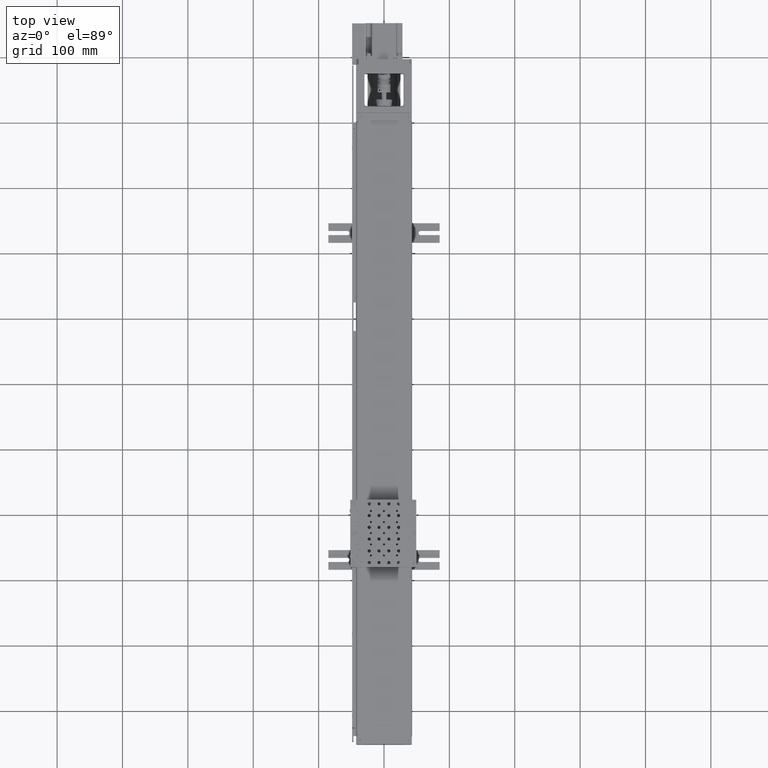
[diagram: clean part render]
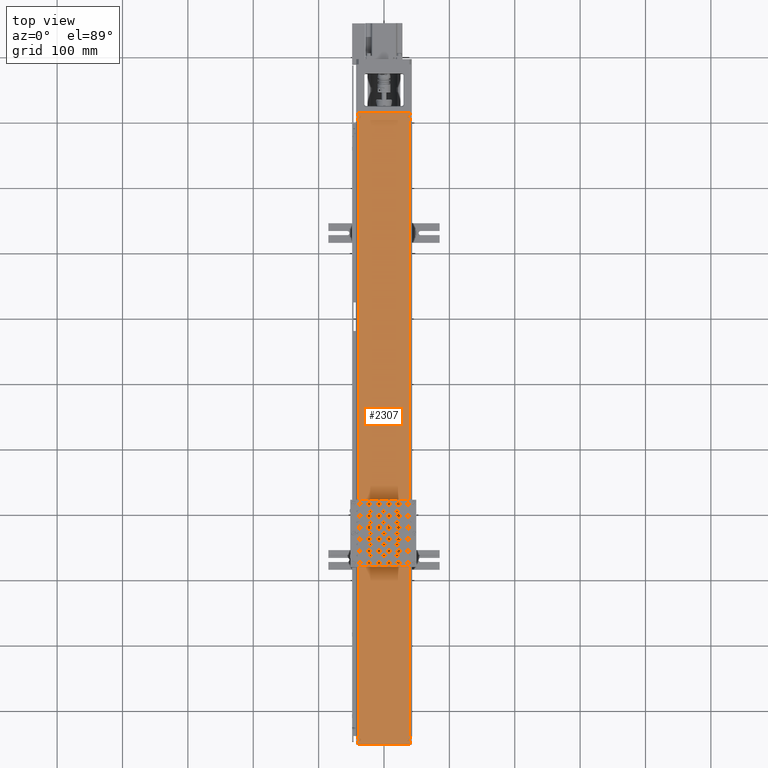
[diagram: same view with one face highlighted and labeled with its STEP entity id]
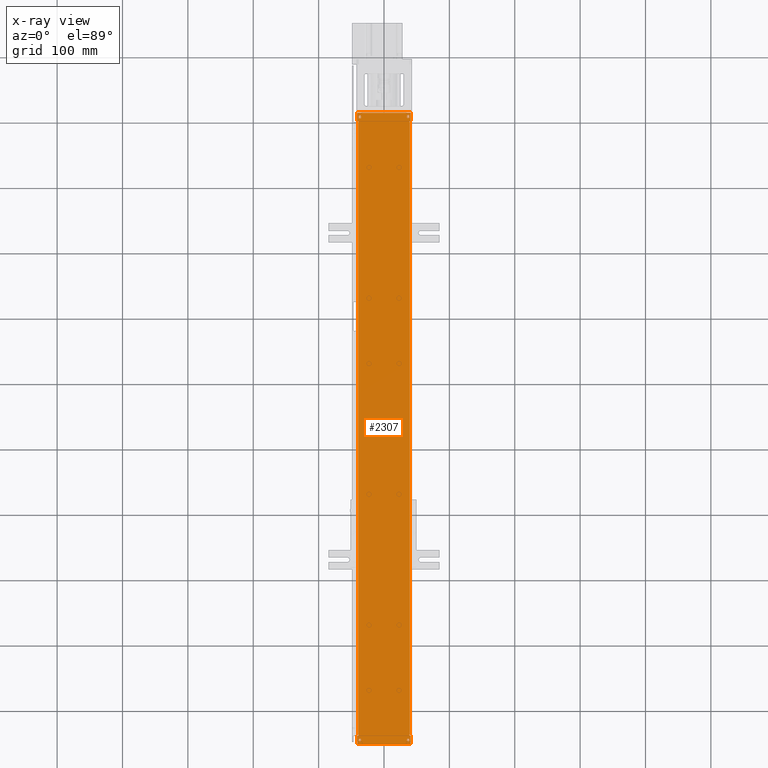
[diagram: x-ray of the same camera — body ghosted, the highlighted face saturated]
A machine part, top view. The second image highlights one B-rep face of the part: STEP entity #2307.
The next image is the same camera in x-ray: the body ghosted, the highlighted face saturated — about 0% of this face is hidden behind the body in this view.
In plain terms, the highlighted planar face has unit normal (0, 0, 1).
Its self-contained STEP definition (entity closure, byte-faithful):
#337=FACE_BOUND('',#7764,.T.);
#338=FACE_BOUND('',#7765,.T.);
#339=FACE_BOUND('',#7766,.T.);
#340=FACE_BOUND('',#7767,.T.);
#2307=ADVANCED_FACE('',(#4874,#337,#338,#339,#340),#40971,.T.);
#4874=FACE_OUTER_BOUND('',#7763,.T.);
#7763=EDGE_LOOP('',(#18849,#18850,#18851,#18852,#18853,#18854,#18855,#18856,
#18857,#18858,#18859,#18860,#18861,#18862,#18863,#18864,#18865,#18866,#18867,
#18868));
#7764=EDGE_LOOP('',(#18869,#18870,#18871,#18872,#18873,#18874,#18875,#18876));
#7765=EDGE_LOOP('',(#18877,#18878));
#7766=EDGE_LOOP('',(#18879,#18880,#18881,#18882,#18883,#18884,#18885,#18886));
#7767=EDGE_LOOP('',(#18887,#18888));
#18849=ORIENTED_EDGE('',*,*,#26840,.T.);
#18850=ORIENTED_EDGE('',*,*,#26841,.T.);
#18851=ORIENTED_EDGE('',*,*,#26842,.T.);
#18852=ORIENTED_EDGE('',*,*,#26843,.T.);
#18853=ORIENTED_EDGE('',*,*,#26844,.T.);
#18854=ORIENTED_EDGE('',*,*,#26845,.T.);
#18855=ORIENTED_EDGE('',*,*,#26846,.T.);
#18856=ORIENTED_EDGE('',*,*,#26798,.F.);
#18857=ORIENTED_EDGE('',*,*,#26799,.F.);
#18858=ORIENTED_EDGE('',*,*,#26802,.F.);
#18859=ORIENTED_EDGE('',*,*,#26815,.T.);
#18860=ORIENTED_EDGE('',*,*,#26818,.T.);
#18861=ORIENTED_EDGE('',*,*,#26820,.T.);
#18862=ORIENTED_EDGE('',*,*,#26847,.T.);
#18863=ORIENTED_EDGE('',*,*,#26813,.T.);
#18864=ORIENTED_EDGE('',*,*,#26807,.T.);
#18865=ORIENTED_EDGE('',*,*,#26810,.T.);
#18866=ORIENTED_EDGE('',*,*,#26805,.F.);
#18867=ORIENTED_EDGE('',*,*,#26793,.F.);
#18868=ORIENTED_EDGE('',*,*,#26839,.F.);
#18869=ORIENTED_EDGE('',*,*,#26911,.T.);
#18870=ORIENTED_EDGE('',*,*,#26848,.T.);
#18871=ORIENTED_EDGE('',*,*,#26915,.T.);
#18872=ORIENTED_EDGE('',*,*,#26849,.T.);
#18873=ORIENTED_EDGE('',*,*,#26918,.T.);
#18874=ORIENTED_EDGE('',*,*,#26850,.T.);
#18875=ORIENTED_EDGE('',*,*,#26907,.T.);
#18876=ORIENTED_EDGE('',*,*,#26851,.T.);
#18877=ORIENTED_EDGE('',*,*,#27379,.T.);
#18878=ORIENTED_EDGE('',*,*,#28574,.T.);
#18879=ORIENTED_EDGE('',*,*,#26852,.T.);
#18880=ORIENTED_EDGE('',*,*,#26896,.T.);
#18881=ORIENTED_EDGE('',*,*,#26853,.T.);
#18882=ORIENTED_EDGE('',*,*,#26900,.T.);
#18883=ORIENTED_EDGE('',*,*,#26854,.T.);
#18884=ORIENTED_EDGE('',*,*,#26888,.T.);
#18885=ORIENTED_EDGE('',*,*,#26855,.T.);
#18886=ORIENTED_EDGE('',*,*,#26892,.T.);
#18887=ORIENTED_EDGE('',*,*,#27378,.T.);
#18888=ORIENTED_EDGE('',*,*,#28571,.T.);
#26793=EDGE_CURVE('',#38718,#38719,#31874,.T.);
#26798=EDGE_CURVE('',#38721,#38720,#31879,.T.);
#26799=EDGE_CURVE('',#38722,#38721,#31880,.T.);
#26802=EDGE_CURVE('',#38723,#38722,#31883,.T.);
#26805=EDGE_CURVE('',#38719,#38724,#31886,.T.);
#26807=EDGE_CURVE('',#38726,#38725,#31888,.T.);
#26810=EDGE_CURVE('',#38725,#38724,#31891,.T.);
#26813=EDGE_CURVE('',#38728,#38726,#31894,.T.);
#26815=EDGE_CURVE('',#38723,#38730,#31896,.T.);
#26818=EDGE_CURVE('',#38730,#38732,#31899,.T.);
#26820=EDGE_CURVE('',#38732,#38734,#31901,.T.);
#26839=EDGE_CURVE('',#38743,#38718,#31914,.T.);
#26840=EDGE_CURVE('',#38743,#38744,#31915,.T.);
#26841=EDGE_CURVE('',#38744,#38745,#31916,.T.);
#26842=EDGE_CURVE('',#38745,#38746,#31917,.T.);
#26843=EDGE_CURVE('',#38746,#38747,#31918,.T.);
#26844=EDGE_CURVE('',#38747,#38748,#31919,.T.);
#26845=EDGE_CURVE('',#38748,#38749,#31920,.T.);
#26846=EDGE_CURVE('',#38749,#38720,#31921,.T.);
#26847=EDGE_CURVE('',#38734,#38728,#31922,.T.);
#26848=EDGE_CURVE('',#38751,#38752,#31923,.T.);
#26849=EDGE_CURVE('',#38753,#38754,#31924,.T.);
#26850=EDGE_CURVE('',#38755,#38756,#31925,.T.);
#26851=EDGE_CURVE('',#38757,#38750,#31926,.T.);
#26852=EDGE_CURVE('',#38759,#38760,#31927,.T.);
#26853=EDGE_CURVE('',#38761,#38762,#31928,.T.);
#26854=EDGE_CURVE('',#38763,#38764,#31929,.T.);
#26855=EDGE_CURVE('',#38765,#38766,#31930,.T.);
#26888=EDGE_CURVE('',#38764,#38765,#33990,.T.);
#26892=EDGE_CURVE('',#38766,#38759,#33993,.T.);
#26896=EDGE_CURVE('',#38760,#38761,#33996,.T.);
#26900=EDGE_CURVE('',#38762,#38763,#33999,.T.);
#26907=EDGE_CURVE('',#38756,#38757,#34004,.T.);
#26911=EDGE_CURVE('',#38750,#38751,#34007,.T.);
#26915=EDGE_CURVE('',#38752,#38753,#34010,.T.);
#26918=EDGE_CURVE('',#38754,#38755,#34012,.T.);
#27378=EDGE_CURVE('',#38767,#39661,#34329,.T.);
#27379=EDGE_CURVE('',#38758,#39663,#34330,.T.);
#28571=EDGE_CURVE('',#39661,#38767,#35320,.T.);
#28574=EDGE_CURVE('',#39663,#38758,#35323,.T.);
#31874=B_SPLINE_CURVE_WITH_KNOTS('',1,(#103357,#103358),.UNSPECIFIED.,.F.,
 .F.,(2,2),(-8.19999999993447,0.),.UNSPECIFIED.);
#31879=B_SPLINE_CURVE_WITH_KNOTS('',1,(#103367,#103368),.UNSPECIFIED.,.F.,
 .F.,(2,2),(-96.540000000005,-95.290000000005),.UNSPECIFIED.);
#31880=B_SPLINE_CURVE_WITH_KNOTS('',1,(#103369,#103370),.UNSPECIFIED.,.F.,
 .F.,(2,2),(-8.19999999993448,0.),.UNSPECIFIED.);
#31883=B_SPLINE_CURVE_WITH_KNOTS('',1,(#103375,#103376),.UNSPECIFIED.,.F.,
 .F.,(2,2),(-1.25,0.),.UNSPECIFIED.);
#31886=B_SPLINE_CURVE_WITH_KNOTS('',1,(#103381,#103382),.UNSPECIFIED.,.F.,
 .F.,(2,2),(-96.540000000005,-95.290000000005),.UNSPECIFIED.);
#31888=B_SPLINE_CURVE_WITH_KNOTS('',1,(#103385,#103386),.UNSPECIFIED.,.F.,
 .F.,(2,2),(23.3600000000013,23.5100000000013),.UNSPECIFIED.);
#31891=B_SPLINE_CURVE_WITH_KNOTS('',1,(#103391,#103392),.UNSPECIFIED.,.F.,
 .F.,(2,2),(1.82499999998362,2.04999999998362),.UNSPECIFIED.);
#31894=B_SPLINE_CURVE_WITH_KNOTS('',1,(#103397,#103398),.UNSPECIFIED.,.F.,
 .F.,(2,2),(-2.01249999998362,-1.93749999998362),.UNSPECIFIED.);
#31896=B_SPLINE_CURVE_WITH_KNOTS('',1,(#103401,#103402),.UNSPECIFIED.,.F.,
 .F.,(2,2),(-2.16249999998363,-1.93749999998363),.UNSPECIFIED.);
#31899=B_SPLINE_CURVE_WITH_KNOTS('',1,(#103407,#103408),.UNSPECIFIED.,.F.,
 .F.,(2,2),(-23.5850000000012,-23.4350000000012),.UNSPECIFIED.);
#31901=B_SPLINE_CURVE_WITH_KNOTS('',1,(#103411,#103412),.UNSPECIFIED.,.F.,
 .F.,(2,2),(1.82499999998363,1.89999999998363),.UNSPECIFIED.);
#31914=B_SPLINE_CURVE_WITH_KNOTS('',1,(#103453,#103454),.UNSPECIFIED.,.F.,
 .F.,(2,2),(-1.25,0.),.UNSPECIFIED.);
#31915=B_SPLINE_CURVE_WITH_KNOTS('',1,(#103455,#103456),.UNSPECIFIED.,.F.,
 .F.,(2,2),(-2.16249999998361,-1.93749999998361),.UNSPECIFIED.);
#31916=B_SPLINE_CURVE_WITH_KNOTS('',1,(#103457,#103458),.UNSPECIFIED.,.F.,
 .F.,(2,2),(-23.5850000000013,-23.4350000000013),.UNSPECIFIED.);
#31917=B_SPLINE_CURVE_WITH_KNOTS('',1,(#103459,#103460),.UNSPECIFIED.,.F.,
 .F.,(2,2),(1.82499999998363,1.89999999998363),.UNSPECIFIED.);
#31918=B_SPLINE_CURVE_WITH_KNOTS('',1,(#103461,#103462),.UNSPECIFIED.,.F.,
 .F.,(2,2),(-23.4350000000013,70.3050000000037),.UNSPECIFIED.);
#31919=B_SPLINE_CURVE_WITH_KNOTS('',1,(#103463,#103464),.UNSPECIFIED.,.F.,
 .F.,(2,2),(-2.01249999998361,-1.93749999998361),.UNSPECIFIED.);
#31920=B_SPLINE_CURVE_WITH_KNOTS('',1,(#103465,#103466),.UNSPECIFIED.,.F.,
 .F.,(2,2),(23.3600000000012,23.5100000000013),.UNSPECIFIED.);
#31921=B_SPLINE_CURVE_WITH_KNOTS('',1,(#103467,#103468),.UNSPECIFIED.,.F.,
 .F.,(2,2),(1.82499999998361,2.04999999998361),.UNSPECIFIED.);
#31922=B_SPLINE_CURVE_WITH_KNOTS('',1,(#103469,#103470),.UNSPECIFIED.,.F.,
 .F.,(2,2),(-23.4350000000012,70.3050000000038),.UNSPECIFIED.);
#31923=B_SPLINE_CURVE_WITH_KNOTS('',1,(#103471,#103472),.UNSPECIFIED.,.F.,
 .F.,(2,2),(1.84499999998386,1.86499999998386),.UNSPECIFIED.);
#31924=B_SPLINE_CURVE_WITH_KNOTS('',1,(#103473,#103474),.UNSPECIFIED.,.F.,
 .F.,(2,2),(-23.8834999999988,-23.7834999999987),.UNSPECIFIED.);
#31925=B_SPLINE_CURVE_WITH_KNOTS('',1,(#103475,#103476),.UNSPECIFIED.,.F.,
 .F.,(2,2),(-1.85499999998389,-1.8349999999839),.UNSPECIFIED.);
#31926=B_SPLINE_CURVE_WITH_KNOTS('',1,(#103477,#103478),.UNSPECIFIED.,.F.,
 .F.,(2,2),(23.8334999999988,23.9334999999988),.UNSPECIFIED.);
#31927=B_SPLINE_CURVE_WITH_KNOTS('',1,(#103479,#103480),.UNSPECIFIED.,.F.,
 .F.,(2,2),(-1.85500000001607,-1.83500000001607),.UNSPECIFIED.);
#31928=B_SPLINE_CURVE_WITH_KNOTS('',1,(#103481,#103482),.UNSPECIFIED.,.F.,
 .F.,(2,2),(-23.8499999999988,-23.7499999999988),.UNSPECIFIED.);
#31929=B_SPLINE_CURVE_WITH_KNOTS('',1,(#103483,#103484),.UNSPECIFIED.,.F.,
 .F.,(2,2),(1.8450000000162,1.8650000000162),.UNSPECIFIED.);
#31930=B_SPLINE_CURVE_WITH_KNOTS('',1,(#103485,#103486),.UNSPECIFIED.,.F.,
 .F.,(2,2),(23.7999999999988,23.8999999999988),.UNSPECIFIED.);
#33990=(
BOUNDED_CURVE()
B_SPLINE_CURVE(2,(#103559,#103560,#103561),.UNSPECIFIED.,.F.,.F.)
B_SPLINE_CURVE_WITH_KNOTS((3,3),(-1.57079632679489,6.38378239159465E-15),
 .UNSPECIFIED.)
CURVE()
GEOMETRIC_REPRESENTATION_ITEM()
RATIONAL_B_SPLINE_CURVE((1.,0.707106781186546,1.))
REPRESENTATION_ITEM('')
);
#33993=(
BOUNDED_CURVE()
B_SPLINE_CURVE(2,(#103569,#103570,#103571),.UNSPECIFIED.,.F.,.F.)
B_SPLINE_CURVE_WITH_KNOTS((3,3),(-1.57079632679489,9.36772324949938E-29),
 .UNSPECIFIED.)
CURVE()
GEOMETRIC_REPRESENTATION_ITEM()
RATIONAL_B_SPLINE_CURVE((1.,0.70710678118655,1.))
REPRESENTATION_ITEM('')
);
#33996=(
BOUNDED_CURVE()
B_SPLINE_CURVE(2,(#103579,#103580,#103581),.UNSPECIFIED.,.F.,.F.)
B_SPLINE_CURVE_WITH_KNOTS((3,3),(-1.57079632679489,6.93889390390723E-15),
 .UNSPECIFIED.)
CURVE()
GEOMETRIC_REPRESENTATION_ITEM()
RATIONAL_B_SPLINE_CURVE((1.,0.707106781186546,1.))
REPRESENTATION_ITEM('')
);
#33999=(
BOUNDED_CURVE()
B_SPLINE_CURVE(2,(#103589,#103590,#103591),.UNSPECIFIED.,.F.,.F.)
B_SPLINE_CURVE_WITH_KNOTS((3,3),(-1.57079632679489,9.36772324949938E-29),
 .UNSPECIFIED.)
CURVE()
GEOMETRIC_REPRESENTATION_ITEM()
RATIONAL_B_SPLINE_CURVE((1.,0.70710678118655,1.))
REPRESENTATION_ITEM('')
);
#34004=(
BOUNDED_CURVE()
B_SPLINE_CURVE(2,(#103608,#103609,#103610),.UNSPECIFIED.,.F.,.F.)
B_SPLINE_CURVE_WITH_KNOTS((3,3),(-1.5707963267949,5.55111512312579E-15),
 .UNSPECIFIED.)
CURVE()
GEOMETRIC_REPRESENTATION_ITEM()
RATIONAL_B_SPLINE_CURVE((1.,0.707106781186546,1.))
REPRESENTATION_ITEM('')
);
#34007=(
BOUNDED_CURVE()
B_SPLINE_CURVE(2,(#103618,#103619,#103620),.UNSPECIFIED.,.F.,.F.)
B_SPLINE_CURVE_WITH_KNOTS((3,3),(-1.57079632679489,9.76215370210988E-29),
 .UNSPECIFIED.)
CURVE()
GEOMETRIC_REPRESENTATION_ITEM()
RATIONAL_B_SPLINE_CURVE((1.,0.70710678118655,1.))
REPRESENTATION_ITEM('')
);
#34010=(
BOUNDED_CURVE()
B_SPLINE_CURVE(2,(#103628,#103629,#103630),.UNSPECIFIED.,.F.,.F.)
B_SPLINE_CURVE_WITH_KNOTS((3,3),(-1.5707963267949,5.68989300120393E-15),
 .UNSPECIFIED.)
CURVE()
GEOMETRIC_REPRESENTATION_ITEM()
RATIONAL_B_SPLINE_CURVE((1.,0.707106781186546,1.))
REPRESENTATION_ITEM('')
);
#34012=(
BOUNDED_CURVE()
B_SPLINE_CURVE(2,(#103636,#103637,#103638),.UNSPECIFIED.,.F.,.F.)
B_SPLINE_CURVE_WITH_KNOTS((3,3),(-1.57079632679489,6.90253292068376E-29),
 .UNSPECIFIED.)
CURVE()
GEOMETRIC_REPRESENTATION_ITEM()
RATIONAL_B_SPLINE_CURVE((1.,0.707106781186549,1.))
REPRESENTATION_ITEM('')
);
#34329=(
BOUNDED_CURVE()
B_SPLINE_CURVE(2,(#105256,#105257,#105258,#105259,#105260),
 .UNSPECIFIED.,.F.,.F.)
B_SPLINE_CURVE_WITH_KNOTS((3,2,3),(3.14159265358979,4.71238898038468,6.28318530717959),
 .UNSPECIFIED.)
CURVE()
GEOMETRIC_REPRESENTATION_ITEM()
RATIONAL_B_SPLINE_CURVE((1.,0.707106781186548,1.,0.707106781186548,1.))
REPRESENTATION_ITEM('')
);
#34330=(
BOUNDED_CURVE()
B_SPLINE_CURVE(2,(#105261,#105262,#105263,#105264,#105265),
 .UNSPECIFIED.,.F.,.F.)
B_SPLINE_CURVE_WITH_KNOTS((3,2,3),(3.14159265358979,4.71238898038469,6.28318530717959),
 .UNSPECIFIED.)
CURVE()
GEOMETRIC_REPRESENTATION_ITEM()
RATIONAL_B_SPLINE_CURVE((1.,0.707106781186548,1.,0.707106781186548,1.))
REPRESENTATION_ITEM('')
);
#35320=(
BOUNDED_CURVE()
B_SPLINE_CURVE(2,(#111840,#111841,#111842,#111843,#111844),
 .UNSPECIFIED.,.F.,.F.)
B_SPLINE_CURVE_WITH_KNOTS((3,2,3),(6.28318530717959,7.85398163397449,9.42477796076938),
 .UNSPECIFIED.)
CURVE()
GEOMETRIC_REPRESENTATION_ITEM()
RATIONAL_B_SPLINE_CURVE((1.,0.707106781186548,1.,0.707106781186548,1.))
REPRESENTATION_ITEM('')
);
#35323=(
BOUNDED_CURVE()
B_SPLINE_CURVE(2,(#111852,#111853,#111854,#111855,#111856),
 .UNSPECIFIED.,.F.,.F.)
B_SPLINE_CURVE_WITH_KNOTS((3,2,3),(6.28318530717959,7.85398163397449,9.42477796076938),
 .UNSPECIFIED.)
CURVE()
GEOMETRIC_REPRESENTATION_ITEM()
RATIONAL_B_SPLINE_CURVE((1.,0.707106781186548,1.,0.707106781186548,1.))
REPRESENTATION_ITEM('')
);
#38718=VERTEX_POINT('',#72213);
#38719=VERTEX_POINT('',#72214);
#38720=VERTEX_POINT('',#72215);
#38721=VERTEX_POINT('',#72216);
#38722=VERTEX_POINT('',#72217);
#38723=VERTEX_POINT('',#72218);
#38724=VERTEX_POINT('',#72219);
#38725=VERTEX_POINT('',#72220);
#38726=VERTEX_POINT('',#72221);
#38728=VERTEX_POINT('',#72223);
#38730=VERTEX_POINT('',#72225);
#38732=VERTEX_POINT('',#72227);
#38734=VERTEX_POINT('',#72229);
#38743=VERTEX_POINT('',#72238);
#38744=VERTEX_POINT('',#72239);
#38745=VERTEX_POINT('',#72240);
#38746=VERTEX_POINT('',#72241);
#38747=VERTEX_POINT('',#72242);
#38748=VERTEX_POINT('',#72243);
#38749=VERTEX_POINT('',#72244);
#38750=VERTEX_POINT('',#72245);
#38751=VERTEX_POINT('',#72246);
#38752=VERTEX_POINT('',#72247);
#38753=VERTEX_POINT('',#72248);
#38754=VERTEX_POINT('',#72249);
#38755=VERTEX_POINT('',#72250);
#38756=VERTEX_POINT('',#72251);
#38757=VERTEX_POINT('',#72252);
#38758=VERTEX_POINT('',#72253);
#38759=VERTEX_POINT('',#72254);
#38760=VERTEX_POINT('',#72255);
#38761=VERTEX_POINT('',#72256);
#38762=VERTEX_POINT('',#72257);
#38763=VERTEX_POINT('',#72258);
#38764=VERTEX_POINT('',#72259);
#38765=VERTEX_POINT('',#72260);
#38766=VERTEX_POINT('',#72261);
#38767=VERTEX_POINT('',#72262);
#39661=VERTEX_POINT('',#73156);
#39663=VERTEX_POINT('',#73158);
#40971=PLANE('',#43748);
#43748=AXIS2_PLACEMENT_3D('',#66571,#45669,$);
#45669=DIRECTION('',(0.,0.,1.));
#66571=CARTESIAN_POINT('',(-41.0099999993532,-551.215304171535,69.5000002768673));
#72213=CARTESIAN_POINT('',(-40.9999999993553,414.194695828515,69.5000002768673));
#72214=CARTESIAN_POINT('',(40.9999999999894,414.194695828515,69.5000002768673));
#72215=CARTESIAN_POINT('',(-40.9999999993508,-538.705304171534,69.5000002768673));
#72216=CARTESIAN_POINT('',(-40.9999999993508,-551.205304171535,69.5000002768673));
#72217=CARTESIAN_POINT('',(40.9999999999941,-551.205304171534,69.5000002768673));
#72218=CARTESIAN_POINT('',(40.999999999994,-538.705304171534,69.5000002768673));
#72219=CARTESIAN_POINT('',(40.9999999999894,401.694695828515,69.5000002768673));
#72220=CARTESIAN_POINT('',(38.7499999999894,401.694695828515,69.5000002768673));
#72221=CARTESIAN_POINT('',(38.7499999999894,400.194695828516,69.5000002768673));
#72223=CARTESIAN_POINT('',(39.4999999999894,400.194695828516,69.5000002768673));
#72225=CARTESIAN_POINT('',(38.749999999994,-538.705304171534,69.5000002768673));
#72227=CARTESIAN_POINT('',(38.749999999994,-537.205304171534,69.5000002768673));
#72229=CARTESIAN_POINT('',(39.499999999994,-537.205304171534,69.5000002768673));
#72238=CARTESIAN_POINT('',(-40.9999999993553,401.694695828515,69.5000002768673));
#72239=CARTESIAN_POINT('',(-38.7499999993553,401.694695828515,69.5000002768673));
#72240=CARTESIAN_POINT('',(-38.7499999993553,400.194695828515,69.5000002768673));
#72241=CARTESIAN_POINT('',(-39.4999999993553,400.194695828515,69.5000002768673));
#72242=CARTESIAN_POINT('',(-39.4999999993508,-537.205304171534,69.5000002768673));
#72243=CARTESIAN_POINT('',(-38.7499999993508,-537.205304171535,69.5000002768673));
#72244=CARTESIAN_POINT('',(-38.7499999993508,-538.705304171534,69.5000002768673));
#72245=CARTESIAN_POINT('',(34.8999999999958,409.164695828465,69.5000002768673));
#72246=CARTESIAN_POINT('',(36.8999999999958,411.164695828465,69.5000002768673));
#72247=CARTESIAN_POINT('',(37.0999999999958,411.164695828465,69.5000002768673));
#72248=CARTESIAN_POINT('',(39.0999999999958,409.164695828465,69.5000002768673));
#72249=CARTESIAN_POINT('',(39.0999999999958,408.164695828465,69.5000002768673));
#72250=CARTESIAN_POINT('',(37.0999999999958,406.164695828465,69.5000002768673));
#72251=CARTESIAN_POINT('',(36.8999999999958,406.164695828465,69.5000002768673));
#72252=CARTESIAN_POINT('',(34.8999999999958,408.164695828465,69.5000002768673));
#72253=CARTESIAN_POINT('',(-39.1,-545.005304171534,69.5000002768673));
#72254=CARTESIAN_POINT('',(-37.1000000000042,410.494695828466,69.5000002768673));
#72255=CARTESIAN_POINT('',(-36.9000000000042,410.494695828466,69.5000002768673));
#72256=CARTESIAN_POINT('',(-34.9000000000042,408.494695828466,69.5000002768673));
#72257=CARTESIAN_POINT('',(-34.9000000000042,407.494695828466,69.5000002768673));
#72258=CARTESIAN_POINT('',(-36.9000000000042,405.494695828466,69.5000002768673));
#72259=CARTESIAN_POINT('',(-37.1000000000042,405.494695828466,69.5000002768673));
#72260=CARTESIAN_POINT('',(-39.1000000000042,407.494695828466,69.5000002768673));
#72261=CARTESIAN_POINT('',(-39.1000000000042,408.494695828466,69.5000002768673));
#72262=CARTESIAN_POINT('',(34.9,-545.005304171534,69.5000002768673));
#73156=CARTESIAN_POINT('',(39.1,-545.005304171534,69.5000002768673));
#73158=CARTESIAN_POINT('',(-34.9,-545.005304171534,69.5000002768673));
#103357=CARTESIAN_POINT('',(-40.9999999993553,414.194695828515,69.5000002768673));
#103358=CARTESIAN_POINT('',(40.9999999999894,414.194695828515,69.5000002768673));
#103367=CARTESIAN_POINT('',(-40.9999999993508,-551.205304171535,69.5000002768673));
#103368=CARTESIAN_POINT('',(-40.9999999993508,-538.705304171534,69.5000002768673));
#103369=CARTESIAN_POINT('',(40.9999999999941,-551.205304171534,69.5000002768673));
#103370=CARTESIAN_POINT('',(-40.9999999993508,-551.205304171535,69.5000002768673));
#103375=CARTESIAN_POINT('',(40.999999999994,-538.705304171534,69.5000002768673));
#103376=CARTESIAN_POINT('',(40.9999999999941,-551.205304171534,69.5000002768673));
#103381=CARTESIAN_POINT('',(40.9999999999894,414.194695828515,69.5000002768673));
#103382=CARTESIAN_POINT('',(40.9999999999894,401.694695828515,69.5000002768673));
#103385=CARTESIAN_POINT('',(38.7499999999894,400.194695828516,69.5000002768673));
#103386=CARTESIAN_POINT('',(38.7499999999894,401.694695828515,69.5000002768673));
#103391=CARTESIAN_POINT('',(38.7499999999894,401.694695828515,69.5000002768673));
#103392=CARTESIAN_POINT('',(40.9999999999894,401.694695828515,69.5000002768673));
#103397=CARTESIAN_POINT('',(39.4999999999894,400.194695828516,69.5000002768673));
#103398=CARTESIAN_POINT('',(38.7499999999894,400.194695828516,69.5000002768673));
#103401=CARTESIAN_POINT('',(40.999999999994,-538.705304171534,69.5000002768673));
#103402=CARTESIAN_POINT('',(38.749999999994,-538.705304171534,69.5000002768673));
#103407=CARTESIAN_POINT('',(38.749999999994,-538.705304171534,69.5000002768673));
#103408=CARTESIAN_POINT('',(38.749999999994,-537.205304171534,69.5000002768673));
#103411=CARTESIAN_POINT('',(38.749999999994,-537.205304171534,69.5000002768673));
#103412=CARTESIAN_POINT('',(39.499999999994,-537.205304171534,69.5000002768673));
#103453=CARTESIAN_POINT('',(-40.9999999993553,401.694695828515,69.5000002768673));
#103454=CARTESIAN_POINT('',(-40.9999999993553,414.194695828515,69.5000002768673));
#103455=CARTESIAN_POINT('',(-40.9999999993553,401.694695828515,69.5000002768673));
#103456=CARTESIAN_POINT('',(-38.7499999993553,401.694695828515,69.5000002768673));
#103457=CARTESIAN_POINT('',(-38.7499999993553,401.694695828515,69.5000002768673));
#103458=CARTESIAN_POINT('',(-38.7499999993553,400.194695828515,69.5000002768673));
#103459=CARTESIAN_POINT('',(-38.7499999993553,400.194695828515,69.5000002768673));
#103460=CARTESIAN_POINT('',(-39.4999999993553,400.194695828515,69.5000002768673));
#103461=CARTESIAN_POINT('',(-39.4999999993553,400.194695828515,69.5000002768673));
#103462=CARTESIAN_POINT('',(-39.4999999993508,-537.205304171534,69.5000002768673));
#103463=CARTESIAN_POINT('',(-39.4999999993508,-537.205304171534,69.5000002768673));
#103464=CARTESIAN_POINT('',(-38.7499999993508,-537.205304171535,69.5000002768673));
#103465=CARTESIAN_POINT('',(-38.7499999993508,-537.205304171535,69.5000002768673));
#103466=CARTESIAN_POINT('',(-38.7499999993508,-538.705304171534,69.5000002768673));
#103467=CARTESIAN_POINT('',(-38.7499999993508,-538.705304171534,69.5000002768673));
#103468=CARTESIAN_POINT('',(-40.9999999993508,-538.705304171534,69.5000002768673));
#103469=CARTESIAN_POINT('',(39.499999999994,-537.205304171534,69.5000002768673));
#103470=CARTESIAN_POINT('',(39.4999999999894,400.194695828516,69.5000002768673));
#103471=CARTESIAN_POINT('',(36.8999999999958,411.164695828465,69.5000002768673));
#103472=CARTESIAN_POINT('',(37.0999999999958,411.164695828465,69.5000002768673));
#103473=CARTESIAN_POINT('',(39.0999999999958,409.164695828465,69.5000002768673));
#103474=CARTESIAN_POINT('',(39.0999999999958,408.164695828465,69.5000002768673));
#103475=CARTESIAN_POINT('',(37.0999999999958,406.164695828465,69.5000002768673));
#103476=CARTESIAN_POINT('',(36.8999999999958,406.164695828465,69.5000002768673));
#103477=CARTESIAN_POINT('',(34.8999999999958,408.164695828465,69.5000002768673));
#103478=CARTESIAN_POINT('',(34.8999999999958,409.164695828465,69.5000002768673));
#103479=CARTESIAN_POINT('',(-37.1000000000042,410.494695828466,69.5000002768673));
#103480=CARTESIAN_POINT('',(-36.9000000000042,410.494695828466,69.5000002768673));
#103481=CARTESIAN_POINT('',(-34.9000000000042,408.494695828466,69.5000002768673));
#103482=CARTESIAN_POINT('',(-34.9000000000042,407.494695828466,69.5000002768673));
#103483=CARTESIAN_POINT('',(-36.9000000000042,405.494695828466,69.5000002768673));
#103484=CARTESIAN_POINT('',(-37.1000000000042,405.494695828466,69.5000002768673));
#103485=CARTESIAN_POINT('',(-39.1000000000042,407.494695828466,69.5000002768673));
#103486=CARTESIAN_POINT('',(-39.1000000000042,408.494695828466,69.5000002768673));
#103559=CARTESIAN_POINT('',(-37.1000000000042,405.494695828466,69.5000002768673));
#103560=CARTESIAN_POINT('',(-39.1000000000042,405.494695828466,69.5000002768673));
#103561=CARTESIAN_POINT('',(-39.1000000000042,407.494695828466,69.5000002768673));
#103569=CARTESIAN_POINT('',(-39.1000000000042,408.494695828466,69.5000002768673));
#103570=CARTESIAN_POINT('',(-39.1000000000043,410.494695828466,69.5000002768673));
#103571=CARTESIAN_POINT('',(-37.1000000000042,410.494695828466,69.5000002768673));
#103579=CARTESIAN_POINT('',(-36.9000000000042,410.494695828466,69.5000002768673));
#103580=CARTESIAN_POINT('',(-34.9000000000042,410.494695828466,69.5000002768673));
#103581=CARTESIAN_POINT('',(-34.9000000000042,408.494695828466,69.5000002768673));
#103589=CARTESIAN_POINT('',(-34.9000000000042,407.494695828466,69.5000002768673));
#103590=CARTESIAN_POINT('',(-34.9000000000042,405.494695828466,69.5000002768673));
#103591=CARTESIAN_POINT('',(-36.9000000000042,405.494695828466,69.5000002768673));
#103608=CARTESIAN_POINT('',(36.8999999999958,406.164695828465,69.5000002768673));
#103609=CARTESIAN_POINT('',(34.8999999999958,406.164695828465,69.5000002768673));
#103610=CARTESIAN_POINT('',(34.8999999999958,408.164695828465,69.5000002768673));
#103618=CARTESIAN_POINT('',(34.8999999999958,409.164695828465,69.5000002768673));
#103619=CARTESIAN_POINT('',(34.8999999999957,411.164695828465,69.5000002768673));
#103620=CARTESIAN_POINT('',(36.8999999999958,411.164695828465,69.5000002768673));
#103628=CARTESIAN_POINT('',(37.0999999999958,411.164695828465,69.5000002768673));
#103629=CARTESIAN_POINT('',(39.0999999999958,411.164695828465,69.5000002768673));
#103630=CARTESIAN_POINT('',(39.0999999999958,409.164695828465,69.5000002768673));
#103636=CARTESIAN_POINT('',(39.0999999999958,408.164695828465,69.5000002768673));
#103637=CARTESIAN_POINT('',(39.0999999999958,406.164695828465,69.5000002768673));
#103638=CARTESIAN_POINT('',(37.0999999999958,406.164695828465,69.5000002768673));
#105256=CARTESIAN_POINT('',(34.9,-545.005304171534,69.5000002768673));
#105257=CARTESIAN_POINT('',(34.9,-542.905304171534,69.5000002768673));
#105258=CARTESIAN_POINT('',(37.,-542.905304171534,69.5000002768673));
#105259=CARTESIAN_POINT('',(39.1,-542.905304171534,69.5000002768673));
#105260=CARTESIAN_POINT('',(39.1,-545.005304171534,69.5000002768673));
#105261=CARTESIAN_POINT('',(-39.1,-545.005304171534,69.5000002768673));
#105262=CARTESIAN_POINT('',(-39.1,-542.905304171534,69.5000002768673));
#105263=CARTESIAN_POINT('',(-37.,-542.905304171534,69.5000002768673));
#105264=CARTESIAN_POINT('',(-34.9,-542.905304171534,69.5000002768673));
#105265=CARTESIAN_POINT('',(-34.9,-545.005304171534,69.5000002768673));
#111840=CARTESIAN_POINT('',(39.1,-545.005304171534,69.5000002768673));
#111841=CARTESIAN_POINT('',(39.1,-547.105304171534,69.5000002768673));
#111842=CARTESIAN_POINT('',(37.,-547.105304171534,69.5000002768673));
#111843=CARTESIAN_POINT('',(34.9,-547.105304171534,69.5000002768673));
#111844=CARTESIAN_POINT('',(34.9,-545.005304171534,69.5000002768673));
#111852=CARTESIAN_POINT('',(-34.9,-545.005304171534,69.5000002768673));
#111853=CARTESIAN_POINT('',(-34.9,-547.105304171534,69.5000002768673));
#111854=CARTESIAN_POINT('',(-37.,-547.105304171534,69.5000002768673));
#111855=CARTESIAN_POINT('',(-39.1,-547.105304171534,69.5000002768673));
#111856=CARTESIAN_POINT('',(-39.1,-545.005304171534,69.5000002768673));